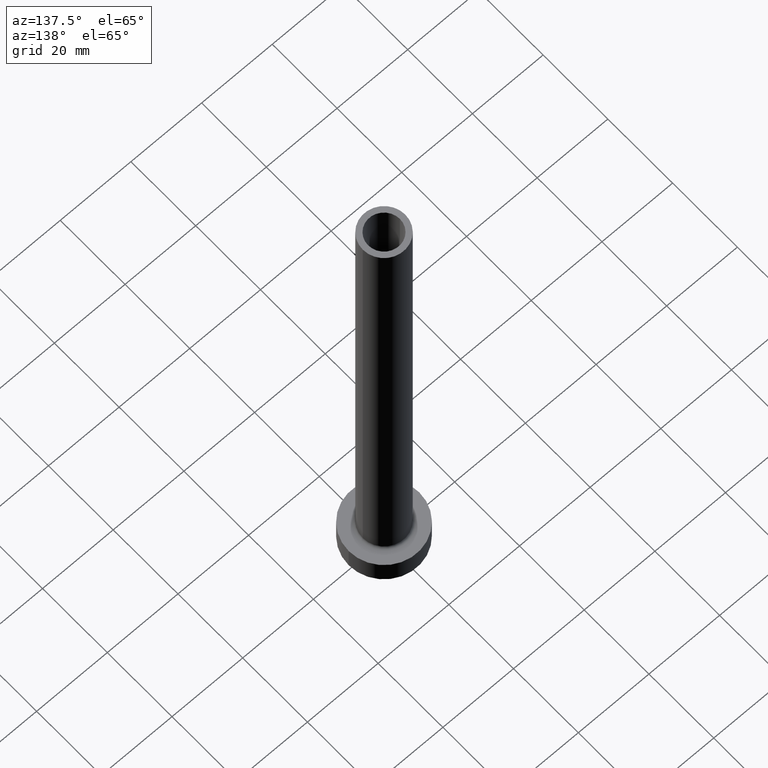
[diagram: clean part render]
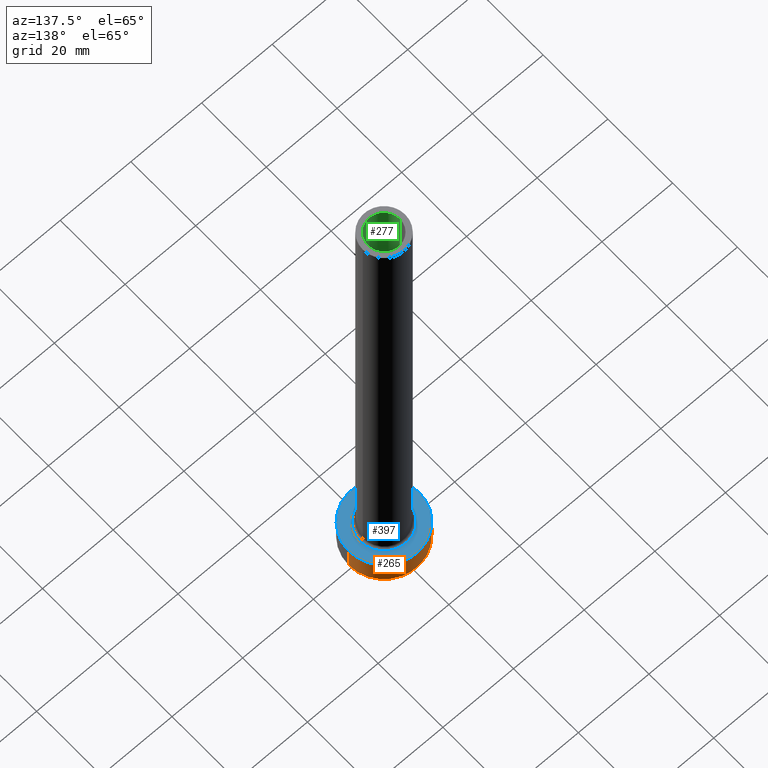
[diagram: same view with three faces highlighted in distinct colors, each labeled with its STEP entity id]
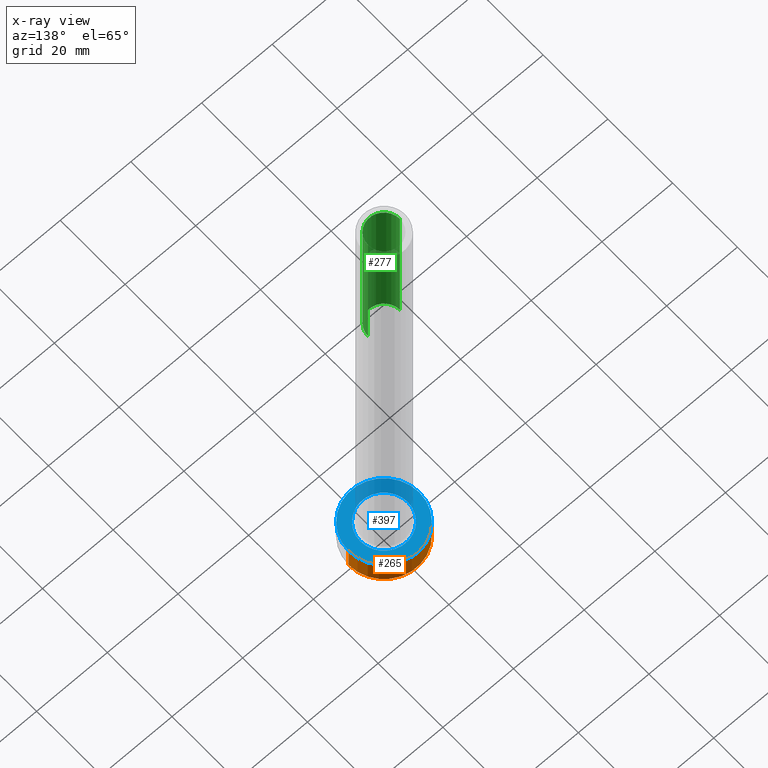
[diagram: x-ray of the same camera — body ghosted, the three highlighted faces saturated]
A machine part, auxiliary view with three faces highlighted in distinct colors.
The next image is the same camera in x-ray (body ghosted, the three faces saturated) — at least one of them is partly hidden behind the body in this view.
Their STEP definitions:

[orange] entity #265 — the highlighted cylindrical surface (partial cylindrical patch) has radius 10 mm, axis along (-0, -0, -1).
#1 = AXIS2_PLACEMENT_3D ( 'NONE', #279, #373, #58 ) ;
#14 = CARTESIAN_POINT ( 'NONE',  ( -10.00000000000000000, 0.000000000000000000, 7.000000000000000000 ) ) ;
#16 = LINE ( 'NONE', #14, #440 ) ;
#54 = DIRECTION ( 'NONE',  ( 1.000000000000000000, 0.000000000000000000, 0.000000000000000000 ) ) ;
#58 = DIRECTION ( 'NONE',  ( 1.000000000000000000, 0.000000000000000000, 0.000000000000000000 ) ) ;
#61 = CARTESIAN_POINT ( 'NONE',  ( 0.000000000000000000, 0.000000000000000000, 7.000000000000000000 ) ) ;
#66 = ORIENTED_EDGE ( 'NONE', *, *, #380, .F. ) ;
#89 = LINE ( 'NONE', #255, #253 ) ;
#100 = DIRECTION ( 'NONE',  ( 0.000000000000000000, 0.000000000000000000, 1.000000000000000000 ) ) ;
#113 = CARTESIAN_POINT ( 'NONE',  ( 10.00000000000000000, 1.224646799147353256E-15, 7.000000000000000000 ) ) ;
#127 = ORIENTED_EDGE ( 'NONE', *, *, #201, .T. ) ;
#156 = DIRECTION ( 'NONE',  ( -0.000000000000000000, -0.000000000000000000, -1.000000000000000000 ) ) ;
#158 = VERTEX_POINT ( 'NONE', #113 ) ;
#164 = CARTESIAN_POINT ( 'NONE',  ( 10.00000000000000000, 1.224646799147353256E-15, 0.000000000000000000 ) ) ;
#170 = CARTESIAN_POINT ( 'NONE',  ( -10.00000000000000000, 0.000000000000000000, 7.000000000000000000 ) ) ;
#184 = CARTESIAN_POINT ( 'NONE',  ( -10.00000000000000000, 0.000000000000000000, 0.000000000000000000 ) ) ;
#190 = DIRECTION ( 'NONE',  ( -0.000000000000000000, -0.000000000000000000, -1.000000000000000000 ) ) ;
#194 = EDGE_CURVE ( 'NONE', #431, #225, #16, .T. ) ;
#201 = EDGE_CURVE ( 'NONE', #158, #323, #89, .T. ) ;
#207 = AXIS2_PLACEMENT_3D ( 'NONE', #332, #251, #404 ) ;
#211 = ORIENTED_EDGE ( 'NONE', *, *, #194, .F. ) ;
#225 = VERTEX_POINT ( 'NONE', #184 ) ;
#238 = AXIS2_PLACEMENT_3D ( 'NONE', #61, #100, #54 ) ;
#251 = DIRECTION ( 'NONE',  ( -0.000000000000000000, -0.000000000000000000, -1.000000000000000000 ) ) ;
#253 = VECTOR ( 'NONE', #190, 1000.000000000000000 ) ;
#255 = CARTESIAN_POINT ( 'NONE',  ( 10.00000000000000000, 1.224646799147353256E-15, 7.000000000000000000 ) ) ;
#261 = CYLINDRICAL_SURFACE ( 'NONE', #207, 10.00000000000000000 ) ;
#265 = ADVANCED_FACE ( 'NONE', ( #436 ), #261, .T. ) ;
#270 = CIRCLE ( 'NONE', #1, 10.00000000000000000 ) ;
#279 = CARTESIAN_POINT ( 'NONE',  ( 0.000000000000000000, 0.000000000000000000, 0.000000000000000000 ) ) ;
#303 = EDGE_CURVE ( 'NONE', #323, #225, #270, .T. ) ;
#323 = VERTEX_POINT ( 'NONE', #164 ) ;
#327 = CIRCLE ( 'NONE', #238, 10.00000000000000000 ) ;
#332 = CARTESIAN_POINT ( 'NONE',  ( 0.000000000000000000, 0.000000000000000000, 7.000000000000000000 ) ) ;
#373 = DIRECTION ( 'NONE',  ( 0.000000000000000000, 0.000000000000000000, 1.000000000000000000 ) ) ;
#380 = EDGE_CURVE ( 'NONE', #158, #431, #327, .T. ) ;
#404 = DIRECTION ( 'NONE',  ( -1.000000000000000000, 0.000000000000000000, 0.000000000000000000 ) ) ;
#428 = ORIENTED_EDGE ( 'NONE', *, *, #303, .T. ) ;
#431 = VERTEX_POINT ( 'NONE', #170 ) ;
#436 = FACE_OUTER_BOUND ( 'NONE', #452, .T. ) ;
#440 = VECTOR ( 'NONE', #156, 1000.000000000000000 ) ;
#452 = EDGE_LOOP ( 'NONE', ( #66, #127, #428, #211 ) ) ;

[blue] entity #397 — the highlighted planar face has unit normal (0, 0, 1).
#3 = AXIS2_PLACEMENT_3D ( 'NONE', #50, #224, #45 ) ;
#21 = DIRECTION ( 'NONE',  ( 0.000000000000000000, 0.000000000000000000, 1.000000000000000000 ) ) ;
#27 = CARTESIAN_POINT ( 'NONE',  ( -6.700000000000001066, 8.205133554287267548E-16, 7.000000000000006217 ) ) ;
#45 = DIRECTION ( 'NONE',  ( 1.000000000000000000, 0.000000000000000000, 0.000000000000000000 ) ) ;
#50 = CARTESIAN_POINT ( 'NONE',  ( 0.000000000000000000, 0.000000000000000000, 7.000000000000000000 ) ) ;
#51 = CARTESIAN_POINT ( 'NONE',  ( 0.000000000000000000, 0.000000000000000000, 7.000000000000000000 ) ) ;
#54 = DIRECTION ( 'NONE',  ( 1.000000000000000000, 0.000000000000000000, 0.000000000000000000 ) ) ;
#61 = CARTESIAN_POINT ( 'NONE',  ( 0.000000000000000000, 0.000000000000000000, 7.000000000000000000 ) ) ;
#65 = AXIS2_PLACEMENT_3D ( 'NONE', #51, #430, #438 ) ;
#71 = EDGE_LOOP ( 'NONE', ( #239, #256 ) ) ;
#100 = DIRECTION ( 'NONE',  ( 0.000000000000000000, 0.000000000000000000, 1.000000000000000000 ) ) ;
#113 = CARTESIAN_POINT ( 'NONE',  ( 10.00000000000000000, 1.224646799147353256E-15, 7.000000000000000000 ) ) ;
#119 = ORIENTED_EDGE ( 'NONE', *, *, #155, .T. ) ;
#133 = DIRECTION ( 'NONE',  ( 1.000000000000000000, 0.000000000000000000, -0.000000000000000000 ) ) ;
#155 = EDGE_CURVE ( 'NONE', #181, #415, #263, .T. ) ;
#158 = VERTEX_POINT ( 'NONE', #113 ) ;
#160 = DIRECTION ( 'NONE',  ( 1.000000000000000000, 0.000000000000000000, 0.000000000000000000 ) ) ;
#163 = EDGE_CURVE ( 'NONE', #415, #181, #179, .T. ) ;
#170 = CARTESIAN_POINT ( 'NONE',  ( -10.00000000000000000, 0.000000000000000000, 7.000000000000000000 ) ) ;
#179 = CIRCLE ( 'NONE', #65, 6.700000000000001066 ) ;
#181 = VERTEX_POINT ( 'NONE', #364 ) ;
#224 = DIRECTION ( 'NONE',  ( -0.000000000000000000, -0.000000000000000000, -1.000000000000000000 ) ) ;
#231 = PLANE ( 'NONE',  #356 ) ;
#238 = AXIS2_PLACEMENT_3D ( 'NONE', #61, #100, #54 ) ;
#239 = ORIENTED_EDGE ( 'NONE', *, *, #384, .T. ) ;
#256 = ORIENTED_EDGE ( 'NONE', *, *, #380, .T. ) ;
#263 = CIRCLE ( 'NONE', #3, 6.700000000000001066 ) ;
#267 = FACE_BOUND ( 'NONE', #453, .T. ) ;
#298 = ORIENTED_EDGE ( 'NONE', *, *, #163, .T. ) ;
#327 = CIRCLE ( 'NONE', #238, 10.00000000000000000 ) ;
#334 = AXIS2_PLACEMENT_3D ( 'NONE', #441, #21, #160 ) ;
#356 = AXIS2_PLACEMENT_3D ( 'NONE', #407, #446, #133 ) ;
#364 = CARTESIAN_POINT ( 'NONE',  ( 6.700000000000001066, 0.000000000000000000, 7.000000000000006217 ) ) ;
#370 = CIRCLE ( 'NONE', #334, 10.00000000000000000 ) ;
#380 = EDGE_CURVE ( 'NONE', #158, #431, #327, .T. ) ;
#384 = EDGE_CURVE ( 'NONE', #431, #158, #370, .T. ) ;
#397 = ADVANCED_FACE ( 'NONE', ( #267, #410 ), #231, .T. ) ;
#407 = CARTESIAN_POINT ( 'NONE',  ( 0.000000000000000000, 0.000000000000000000, 7.000000000000000000 ) ) ;
#410 = FACE_OUTER_BOUND ( 'NONE', #71, .T. ) ;
#415 = VERTEX_POINT ( 'NONE', #27 ) ;
#430 = DIRECTION ( 'NONE',  ( -0.000000000000000000, -0.000000000000000000, -1.000000000000000000 ) ) ;
#431 = VERTEX_POINT ( 'NONE', #170 ) ;
#438 = DIRECTION ( 'NONE',  ( 1.000000000000000000, 0.000000000000000000, 0.000000000000000000 ) ) ;
#441 = CARTESIAN_POINT ( 'NONE',  ( 0.000000000000000000, 0.000000000000000000, 7.000000000000000000 ) ) ;
#446 = DIRECTION ( 'NONE',  ( 0.000000000000000000, 0.000000000000000000, 1.000000000000000000 ) ) ;
#453 = EDGE_LOOP ( 'NONE', ( #119, #298 ) ) ;

[green] entity #277 — the highlighted cylindrical surface (edge-blend (fillet) strip) has radius 4.5 mm, axis along (0, 0, -1).
#6 = EDGE_CURVE ( 'NONE', #240, #59, #307, .T. ) ;
#7 = ORIENTED_EDGE ( 'NONE', *, *, #6, .F. ) ;
#12 = CARTESIAN_POINT ( 'NONE',  ( -4.500000000000000000, 0.000000000000000000, 150.0000000000000000 ) ) ;
#31 = CIRCLE ( 'NONE', #287, 4.500000000000000000 ) ;
#34 = EDGE_CURVE ( 'NONE', #59, #422, #31, .T. ) ;
#55 = CIRCLE ( 'NONE', #377, 4.500000000000000000 ) ;
#59 = VERTEX_POINT ( 'NONE', #243 ) ;
#73 = DIRECTION ( 'NONE',  ( -1.000000000000000000, 0.000000000000000000, 0.000000000000000000 ) ) ;
#92 = CARTESIAN_POINT ( 'NONE',  ( 4.500000000000000000, 5.510910596163087583E-16, 150.0000000000000000 ) ) ;
#96 = CARTESIAN_POINT ( 'NONE',  ( 0.000000000000000000, 0.000000000000000000, 150.0000000000000000 ) ) ;
#135 = CARTESIAN_POINT ( 'NONE',  ( 0.000000000000000000, 0.000000000000000000, 105.0000000000000000 ) ) ;
#138 = CARTESIAN_POINT ( 'NONE',  ( -4.500000000000000000, 0.000000000000000000, 150.0000000000000000 ) ) ;
#141 = DIRECTION ( 'NONE',  ( 0.000000000000000000, 0.000000000000000000, -1.000000000000000000 ) ) ;
#162 = DIRECTION ( 'NONE',  ( 0.000000000000000000, 0.000000000000000000, 1.000000000000000000 ) ) ;
#185 = AXIS2_PLACEMENT_3D ( 'NONE', #96, #141, #73 ) ;
#192 = CARTESIAN_POINT ( 'NONE',  ( 4.500000000000000000, 5.510910596163087583E-16, 150.0000000000000000 ) ) ;
#198 = DIRECTION ( 'NONE',  ( 0.000000000000000000, 0.000000000000000000, 1.000000000000000000 ) ) ;
#200 = DIRECTION ( 'NONE',  ( 1.000000000000000000, 0.000000000000000000, 0.000000000000000000 ) ) ;
#216 = ORIENTED_EDGE ( 'NONE', *, *, #34, .F. ) ;
#226 = DIRECTION ( 'NONE',  ( 0.000000000000000000, 0.000000000000000000, -1.000000000000000000 ) ) ;
#240 = VERTEX_POINT ( 'NONE', #12 ) ;
#243 = CARTESIAN_POINT ( 'NONE',  ( -4.500000000000000000, 0.000000000000000000, 105.0000000000000000 ) ) ;
#245 = ORIENTED_EDGE ( 'NONE', *, *, #350, .T. ) ;
#250 = VECTOR ( 'NONE', #372, 1000.000000000000000 ) ;
#257 = EDGE_CURVE ( 'NONE', #278, #422, #433, .T. ) ;
#273 = CARTESIAN_POINT ( 'NONE',  ( 4.500000000000000000, 5.510910596163087583E-16, 105.0000000000000000 ) ) ;
#277 = ADVANCED_FACE ( 'NONE', ( #301 ), #457, .F. ) ;
#278 = VERTEX_POINT ( 'NONE', #192 ) ;
#287 = AXIS2_PLACEMENT_3D ( 'NONE', #135, #198, #200 ) ;
#301 = FACE_OUTER_BOUND ( 'NONE', #417, .T. ) ;
#307 = LINE ( 'NONE', #138, #250 ) ;
#336 = CARTESIAN_POINT ( 'NONE',  ( 0.000000000000000000, 0.000000000000000000, 150.0000000000000000 ) ) ;
#339 = DIRECTION ( 'NONE',  ( 1.000000000000000000, 0.000000000000000000, 0.000000000000000000 ) ) ;
#350 = EDGE_CURVE ( 'NONE', #240, #278, #55, .T. ) ;
#353 = ORIENTED_EDGE ( 'NONE', *, *, #257, .T. ) ;
#372 = DIRECTION ( 'NONE',  ( 0.000000000000000000, 0.000000000000000000, -1.000000000000000000 ) ) ;
#377 = AXIS2_PLACEMENT_3D ( 'NONE', #336, #162, #339 ) ;
#417 = EDGE_LOOP ( 'NONE', ( #245, #353, #216, #7 ) ) ;
#420 = VECTOR ( 'NONE', #226, 1000.000000000000000 ) ;
#422 = VERTEX_POINT ( 'NONE', #273 ) ;
#433 = LINE ( 'NONE', #92, #420 ) ;
#457 = CYLINDRICAL_SURFACE ( 'NONE', #185, 4.500000000000000000 ) ;